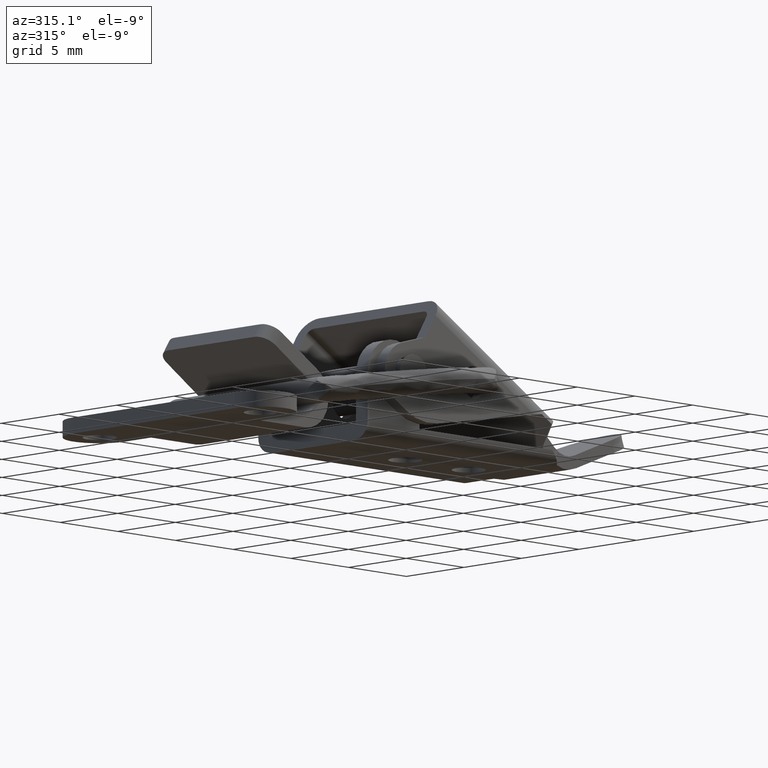
[diagram: clean part render]
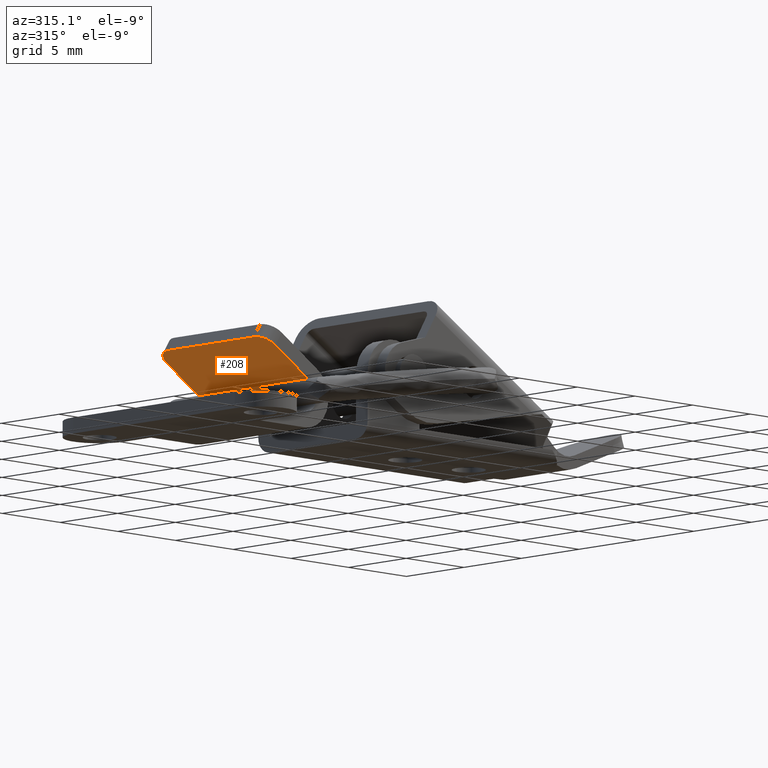
[diagram: same view with one face highlighted and labeled with its STEP entity id]
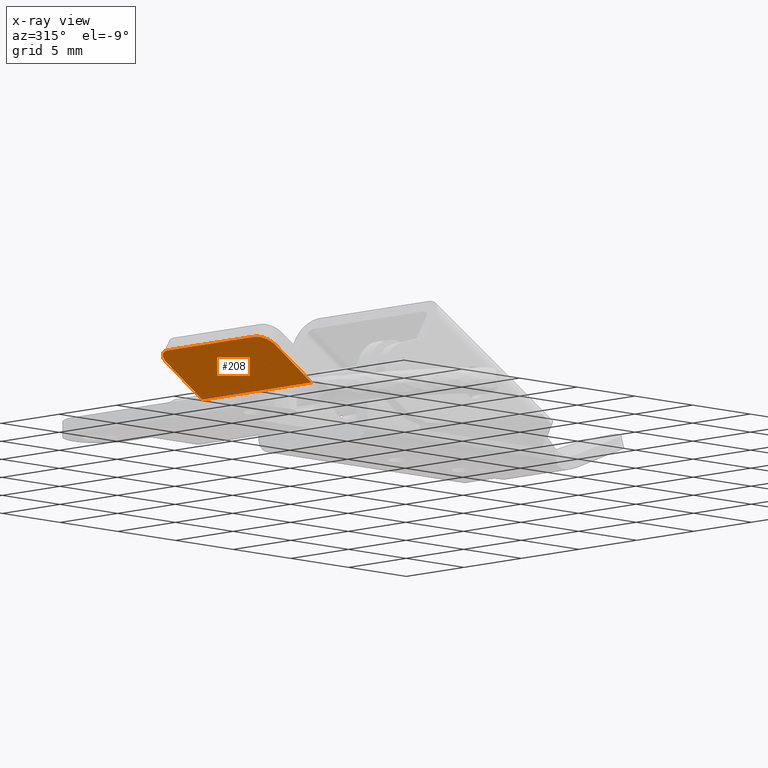
[diagram: x-ray of the same camera — body ghosted, the highlighted face saturated]
A machine part, auxiliary view. The second image highlights one B-rep face of the part: STEP entity #208.
The next image is the same camera in x-ray: the body ghosted, the highlighted face saturated — about 2% of this face is hidden behind the body in this view.
In plain terms, the highlighted planar face has unit normal (0.5359, 0, 0.8443).
Its self-contained STEP definition (entity closure, byte-faithful):
#208=ADVANCED_FACE('',(#522),#521,.F.);
#521=PLANE('',#1629);
#522=FACE_OUTER_BOUND('',#1630,.T.);
#1626=CARTESIAN_POINT('',(4.58351072760E+00,-5.60685531850E+00,-5.70000000000E+00));
#1627=DIRECTION('',(5.35890908222E-01,-8.44287234586E-01,0.00000000000E+00));
#1628=DIRECTION('',(8.44287234586E-01,5.35890908222E-01,0.00000000000E+00));
#1629=AXIS2_PLACEMENT_3D('',#1626,#1627,#1628);
#1630=EDGE_LOOP('',(#2354,#2355,#2356,#2357,#2358,#2359));
#2354=ORIENTED_EDGE('',*,*,#2910,.T.);
#2355=ORIENTED_EDGE('',*,*,#2898,.T.);
#2356=ORIENTED_EDGE('',*,*,#2916,.F.);
#2357=ORIENTED_EDGE('',*,*,#2894,.T.);
#2358=ORIENTED_EDGE('',*,*,#2902,.F.);
#2359=ORIENTED_EDGE('',*,*,#2917,.T.);
#2894=EDGE_CURVE('',#3511,#3512,#3513,.T.);
#2898=EDGE_CURVE('',#3539,#3540,#3541,.T.);
#2902=EDGE_CURVE('',#3567,#3512,#3568,.T.);
#2910=EDGE_CURVE('',#3622,#3539,#3623,.T.);
#2916=EDGE_CURVE('',#3511,#3540,#3663,.T.);
#2917=EDGE_CURVE('',#3567,#3622,#3669,.T.);
#3511=VERTEX_POINT('',#5532);
#3512=VERTEX_POINT('',#5533);
#3513=CIRCLE('',#5537,1.00000000000E+00);
#3539=VERTEX_POINT('',#5550);
#3540=VERTEX_POINT('',#5551);
#3541=CIRCLE('',#5555,1.00000000000E+00);
#3567=VERTEX_POINT('',#5568);
#3568=LINE('',#5569,#5570);
#3622=VERTEX_POINT('',#5601);
#3623=LINE('',#5602,#5603);
#3663=LINE('',#5626,#5627);
#3669=LINE('',#5629,#5630);
#5532=CARTESIAN_POINT('',(4.97918165311E+00,-5.35571276541E+00,3.75000000000E+00));
#5533=CARTESIAN_POINT('',(5.82346888770E+00,-4.81982185719E+00,4.75000000000E+00));
#5534=CARTESIAN_POINT('',(5.82346888770E+00,-4.81982185719E+00,3.75000000000E+00));
#5535=DIRECTION('',(-5.35890908222E-01,8.44287234586E-01,0.00000000000E+00));
#5536=DIRECTION('',(-8.44287234586E-01,-5.35890908222E-01,-0.00000000000E+00));
#5537=AXIS2_PLACEMENT_3D('',#5534,#5535,#5536);
#5550=CARTESIAN_POINT('',(5.82346888770E+00,-4.81982185719E+00,-4.75000000000E+00));
#5551=CARTESIAN_POINT('',(4.97918165311E+00,-5.35571276541E+00,-3.75000000000E+00));
#5552=CARTESIAN_POINT('',(5.82346888770E+00,-4.81982185719E+00,-3.75000000000E+00));
#5553=DIRECTION('',(-5.35890908222E-01,8.44287234586E-01,0.00000000000E+00));
#5554=DIRECTION('',(-8.44287234586E-01,-5.35890908222E-01,-0.00000000000E+00));
#5555=AXIS2_PLACEMENT_3D('',#5552,#5553,#5554);
#5568=CARTESIAN_POINT('',(8.93589090822E+00,-2.84428723459E+00,4.75000000000E+00));
#5569=CARTESIAN_POINT('',(8.93589090822E+00,-2.84428723459E+00,4.75000000000E+00));
#5570=VECTOR('',#5571,3.68644922371E+00);
#5571=DIRECTION('',(-8.44287234586E-01,-5.35890908222E-01,0.00000000000E+00));
#5601=CARTESIAN_POINT('',(8.93589090822E+00,-2.84428723459E+00,-4.75000000000E+00));
#5602=CARTESIAN_POINT('',(8.93589090822E+00,-2.84428723459E+00,-4.75000000000E+00));
#5603=VECTOR('',#5604,3.68644922371E+00);
#5604=DIRECTION('',(-8.44287234586E-01,-5.35890908222E-01,0.00000000000E+00));
#5626=CARTESIAN_POINT('',(4.97918165311E+00,-5.35571276541E+00,3.75000000000E+00));
#5627=VECTOR('',#5628,7.50000000000E+00);
#5628=DIRECTION('',(0.00000000000E+00,0.00000000000E+00,-1.00000000000E+00));
#5629=CARTESIAN_POINT('',(8.93589090822E+00,-2.84428723459E+00,4.75000000000E+00));
#5630=VECTOR('',#5631,9.50000000000E+00);
#5631=DIRECTION('',(0.00000000000E+00,0.00000000000E+00,-1.00000000000E+00));